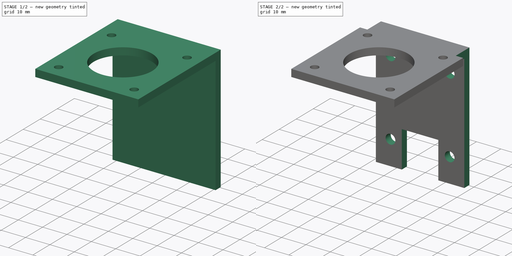
[diagram: build sequence overview — one tinted view per stage of 2, left to right]
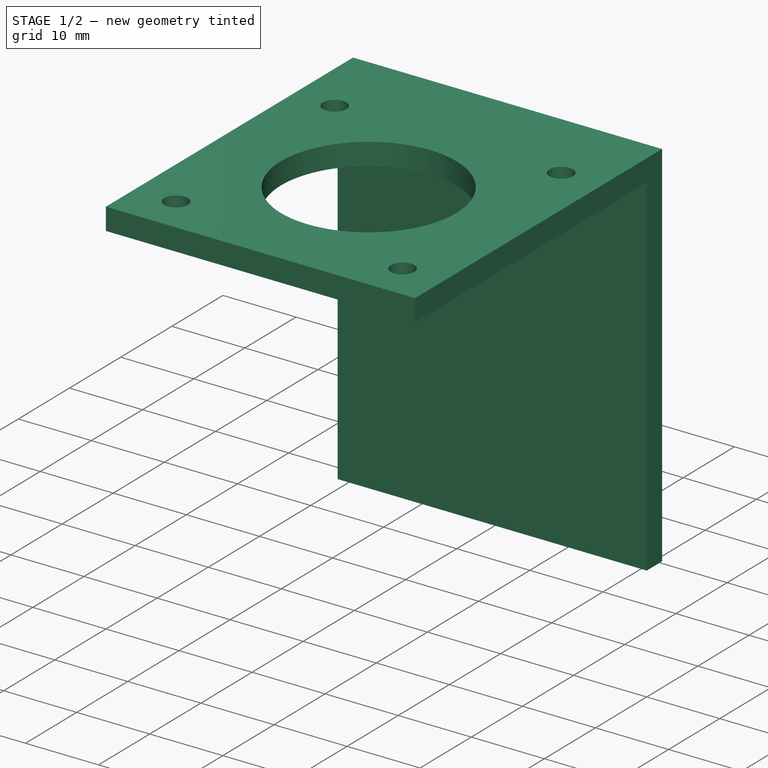
[diagram: stage 1 of 2 — iso view after this stage's code; geometry added in this stage tinted green]
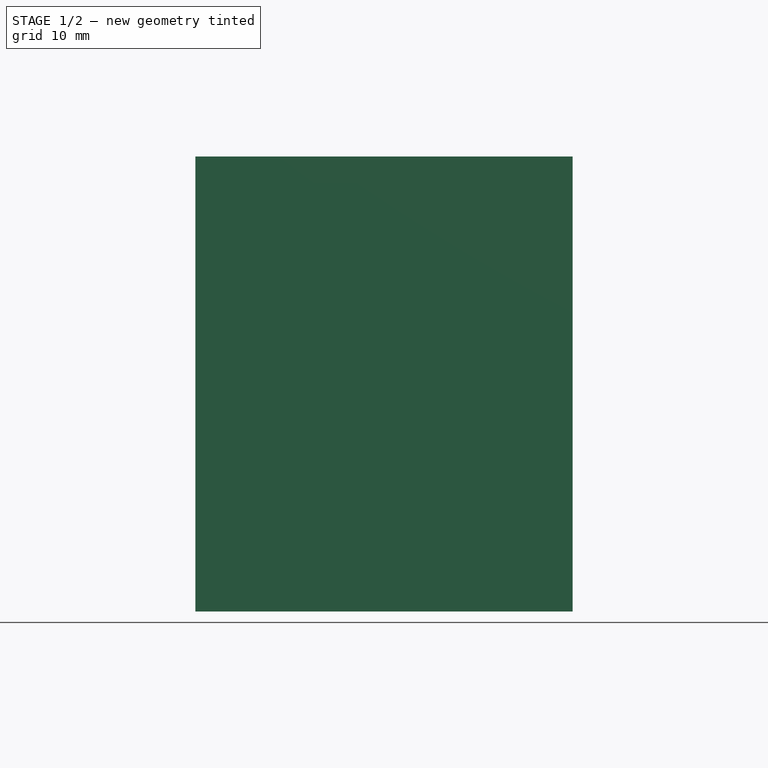
[diagram: stage 1 of 2 — front view after this stage's code; geometry added in this stage tinted green]
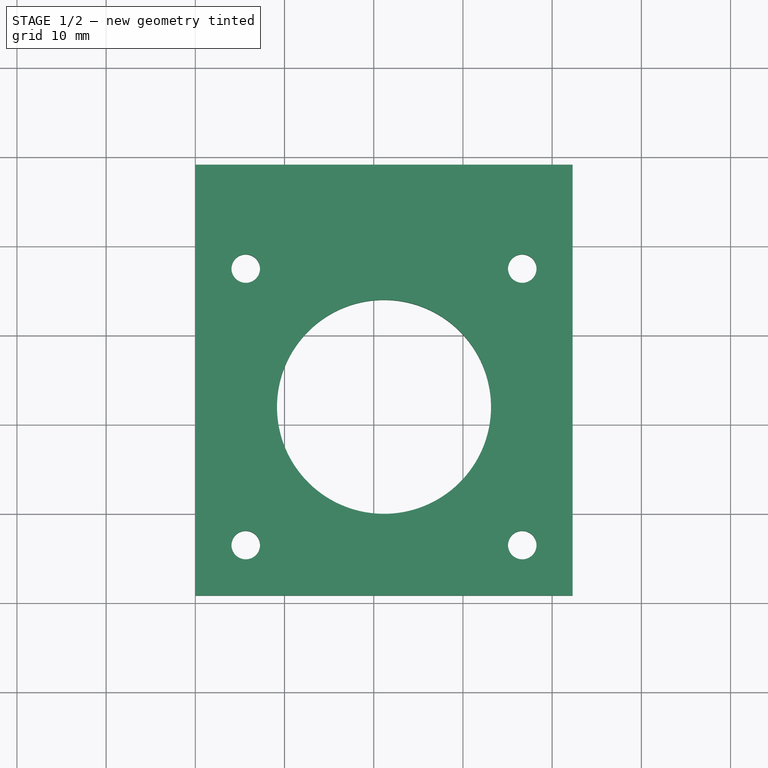
[diagram: stage 1 of 2 — top view after this stage's code; geometry added in this stage tinted green]
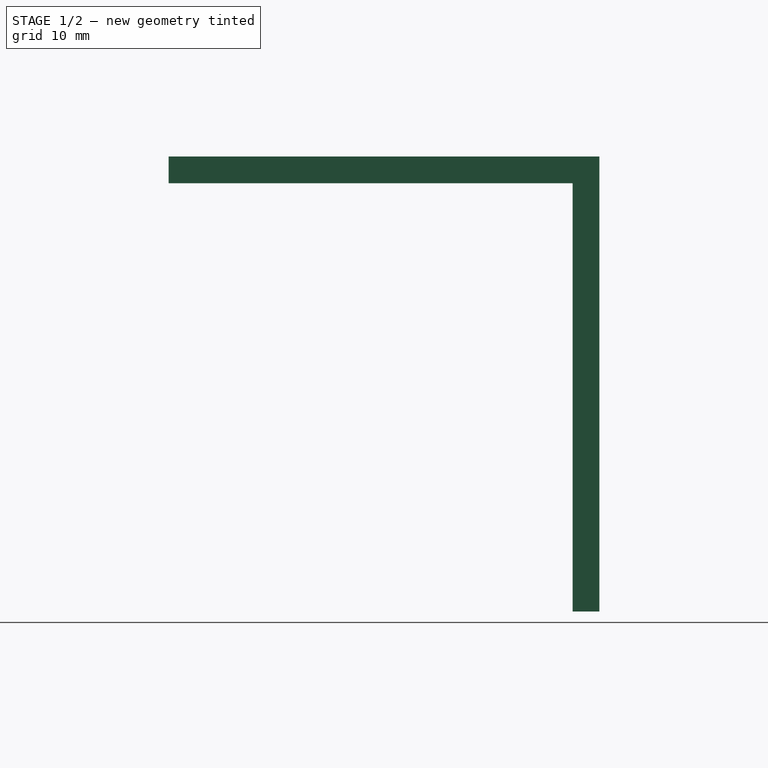
[diagram: stage 1 of 2 — right view after this stage's code; geometry added in this stage tinted green]
FCSTD DOCUMENT  (FreeCAD 0.16R6707 (Git))
Label: support_moteur
License: All rights reserved
LicenseURL: http://en.wikipedia.org/wiki/All_rights_reserved
objects: Drawing::FeatureViewPart×4, Sketcher::SketchObject×3, PartDesign::Pad×2, PartDesign::Pocket×1, Drawing::FeaturePage×1
note: 9 computed .brp shape members not serialized (recipe doc carries the construction recipe); baked Part::Feature solids carry a one-line shape summary decoded from their .brp

FEATURE [Sketcher::SketchObject] Sketch
  sketch-geometry (18):
    g0: LineSegment StartX=0 StartY=0 StartZ=0 EndX=42.3 EndY=0 EndZ=0
    g1: LineSegment StartX=42.3 StartY=0 StartZ=0 EndX=42.3 EndY=42.3 EndZ=0
    g2: LineSegment StartX=0 StartY=42.3 StartZ=0 EndX=0 EndY=0 EndZ=0
    g3: GeomPoint [constr] X=0 Y=48.3 Z=0
    g4: GeomPoint [constr] X=42.3 Y=48.3 Z=0
    g5: LineSegment StartX=0 StartY=42.3 StartZ=0 EndX=0 EndY=48.3 EndZ=0
    g6: LineSegment StartX=0 StartY=48.3 StartZ=0 EndX=42.3 EndY=48.3 EndZ=0
    g7: LineSegment StartX=42.3 StartY=48.3 StartZ=0 EndX=42.3 EndY=42.3 EndZ=0
    g8: GeomPoint [constr] X=5.65 Y=5.65 Z=0
    g9: GeomPoint [constr] X=5.65 Y=36.65 Z=0
    g10: GeomPoint [constr] X=36.65 Y=36.65 Z=0
    g11: GeomPoint [constr] X=36.65 Y=5.65 Z=0
    g12: Circle CenterX=5.65 CenterY=36.65 CenterZ=0 NormalX=0 NormalY=0 NormalZ=1 Radius=1.6
    g13: Circle CenterX=36.65 CenterY=36.65 CenterZ=0 NormalX=0 NormalY=0 NormalZ=1 Radius=1.6
    g14: Circle CenterX=5.65 CenterY=5.65 CenterZ=0 NormalX=0 NormalY=0 NormalZ=1 Radius=1.6
    g15: Circle CenterX=36.65 CenterY=5.65 CenterZ=0 NormalX=0 NormalY=0 NormalZ=1 Radius=1.6
    g16: GeomPoint [constr] X=21.15 Y=21.15 Z=0
    g17: Circle CenterX=21.15 CenterY=21.15 CenterZ=0 NormalX=0 NormalY=0 NormalZ=1 Radius=12
  constraints (39):
    c: Coincident(g0,g1)
    c: Coincident(g2,g0)
    c: Horizontal(g0)
    c: Vertical(g1)
    c: Vertical(g2)
    c: Coincident(g0,g-1)
    c: Distance(g2) = 42.3
    c: Distance(g0) = 42.3
    c: Distance(g1) = 42.3
    c: PointOnObject(g3,g-2)
    c: Distance(g3,g2) = 6
    c: DistanceX(g1,g4) = 0
    c: DistanceY(g1,g4) = 6
    c: Coincident(g2,g5)
    c: Coincident(g5,g3)
    c: Coincident(g5,g6)
    c: Coincident(g6,g4)
    c: Coincident(g6,g7)
    c: Coincident(g7,g1)
    c: DistanceX(g8,g9) = 0
    c: DistanceY(g10,g9) = 0
    c: DistanceY(g8,g11) = 0
    c: DistanceX(g8) = 5.65
    c: DistanceY(g8) = 5.65
    c: DistanceX(g10,g11) = 0
    c: DistanceY(g8,g9) = 31
    c: DistanceX(g9,g10) = 31
    c: Coincident(g12,g9)
    c: Coincident(g13,g10)
    c: Coincident(g14,g8)
    c: Coincident(g15,g11)
    c: Radius(g12) = 1.6
    c: Radius(g13) = 1.6
    c: Radius(g15) = 1.6
    c: Radius(g14) = 1.6
    c: DistanceY(g16) = 21.15
    c: DistanceX(g16) = 21.15
    c: Coincident(g17,g16)
    c: Radius(g17) = 12
FEATURE [PartDesign::Pad] Pad
  Length = 3
  Length2 = 100
  Sketch = -> Sketch
  Type = 0
FEATURE [Sketcher::SketchObject] Sketch001
  Placement = pos=(0,0,0) rot=(1,0,0;3.14159rad)
  Support = -> Pad [Face12]
  sketch-geometry (5):
    g0: GeomPoint [constr] X=0 Y=-45.3 Z=0
    g1: LineSegment StartX=0 StartY=-45.3 StartZ=0 EndX=42.3 EndY=-45.3 EndZ=0
    g2: LineSegment StartX=42.3 StartY=-45.3 StartZ=0 EndX=42.3 EndY=-48.3 EndZ=0
    g3: LineSegment StartX=42.3 StartY=-48.3 StartZ=0 EndX=0 EndY=-48.3 EndZ=0
    g4: LineSegment StartX=0 StartY=-48.3 StartZ=0 EndX=0 EndY=-45.3 EndZ=0
  constraints (13):
    c: PointOnObject(g0,g-2)
    c: DistanceY(g0) = -45.3
    c: Coincident(g1,g2)
    c: Coincident(g2,g3)
    c: Coincident(g3,g4)
    c: Coincident(g4,g1)
    c: Horizontal(g1)
    c: Horizontal(g3)
    c: Vertical(g2)
    c: Vertical(g4)
    c: Coincident(g1,g0)
    c: Distance(g1) = 42.3
    c: Distance(g2) = 3
FEATURE [PartDesign::Pad] Pad001
  Length = 48
  Length2 = 100
  Sketch = -> Sketch001
  Type = 0
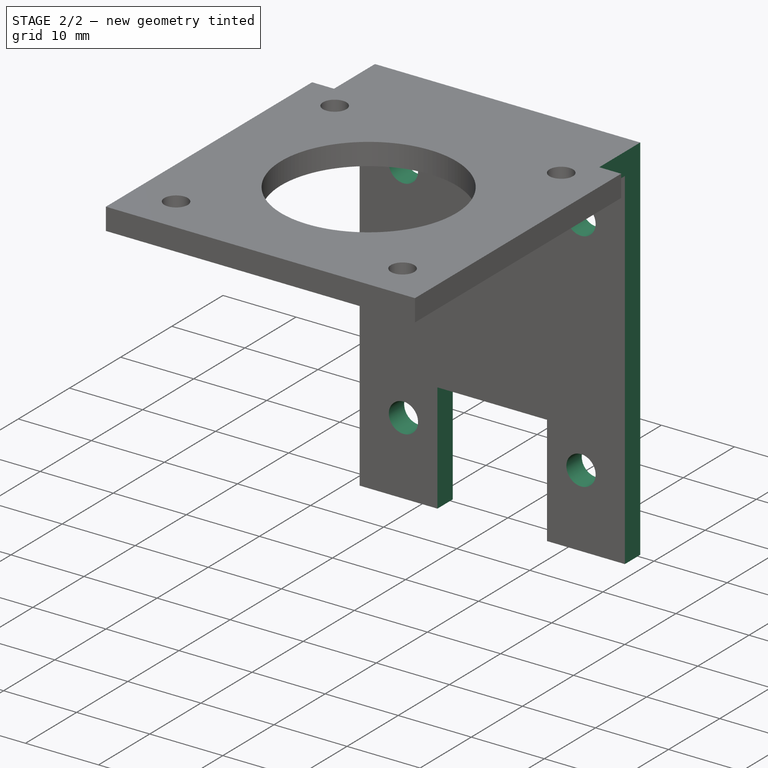
[diagram: stage 2 of 2 — iso view after this stage's code; geometry added in this stage tinted green]
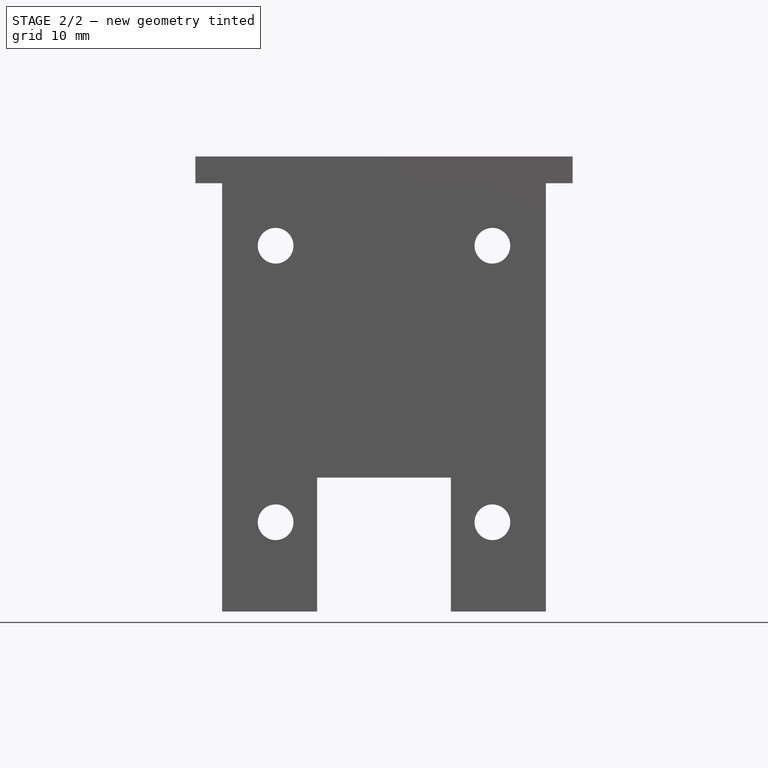
[diagram: stage 2 of 2 — front view after this stage's code; geometry added in this stage tinted green]
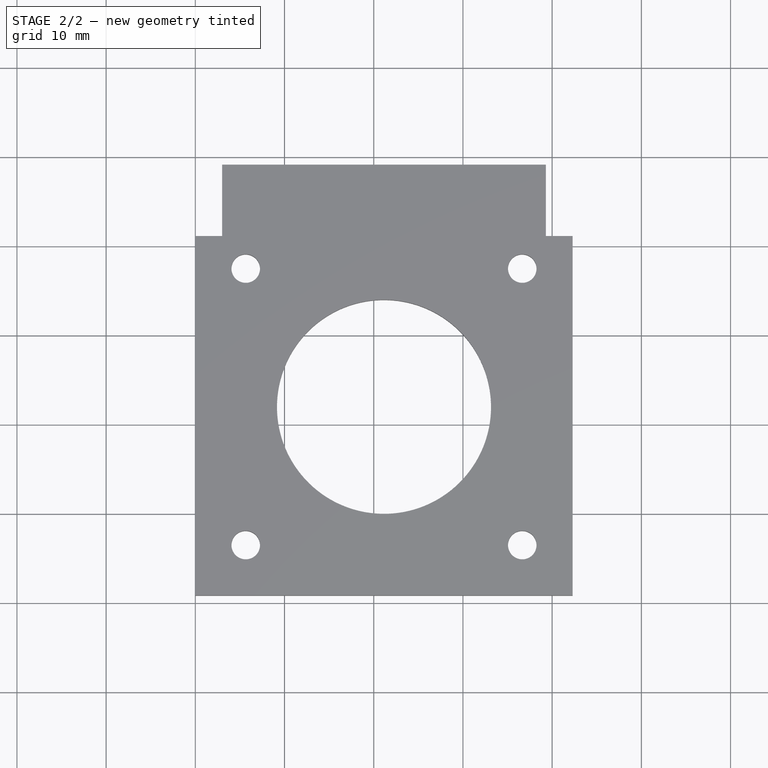
[diagram: stage 2 of 2 — top view after this stage's code; geometry added in this stage tinted green]
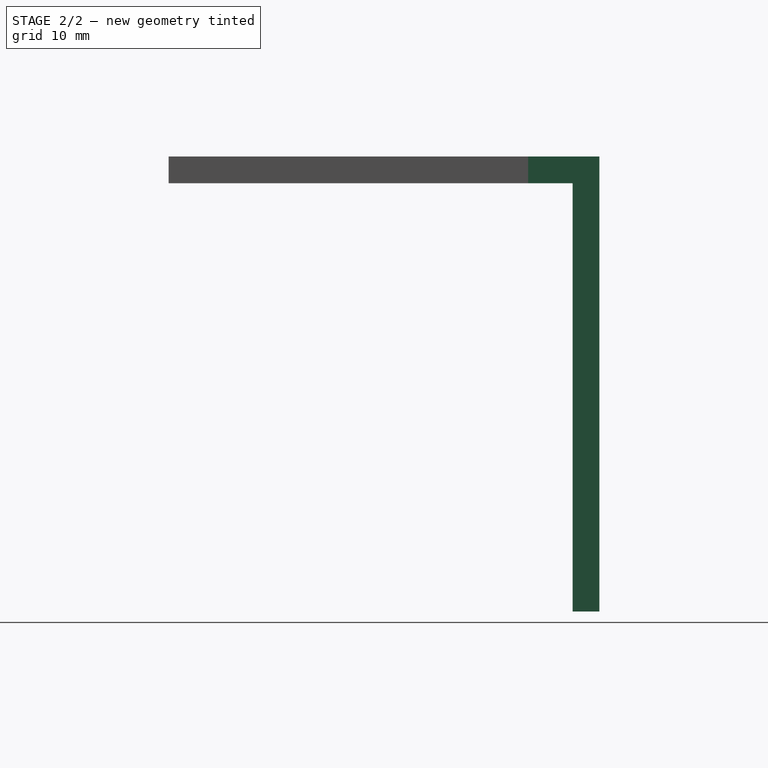
[diagram: stage 2 of 2 — right view after this stage's code; geometry added in this stage tinted green]
FEATURE [Sketcher::SketchObject] Sketch002
  Placement = pos=(0,48.3,0) rot=(0,0.707107,0.707107;3.14159rad)
  Support = -> Pad001 [Face18]
  sketch-geometry (22):
    g0: GeomPoint [constr] X=-9 Y=-7 Z=0
    g1: GeomPoint [constr] X=-33.3 Y=-7 Z=0
    g2: GeomPoint [constr] X=-33.3 Y=-38 Z=0
    g3: GeomPoint [constr] X=-9 Y=-38 Z=0
    g4: Circle CenterX=-33.3 CenterY=-7 CenterZ=0 NormalX=0 NormalY=0 NormalZ=1 Radius=2
    g5: Circle CenterX=-9 CenterY=-7 CenterZ=0 NormalX=0 NormalY=0 NormalZ=1 Radius=2
    g6: Circle CenterX=-33.3 CenterY=-38 CenterZ=0 NormalX=0 NormalY=0 NormalZ=1 Radius=2
    g7: Circle CenterX=-9 CenterY=-38 CenterZ=0 NormalX=0 NormalY=0 NormalZ=1 Radius=2
    g8: GeomPoint [constr] X=-21.15 Y=-48 Z=0
    g9: GeomPoint [constr] X=-28.65 Y=-48 Z=0
    g10: LineSegment StartX=-28.65 StartY=-48 StartZ=0 EndX=-13.65 EndY=-48 EndZ=0
    g11: LineSegment StartX=-13.65 StartY=-48 StartZ=0 EndX=-13.65 EndY=-33 EndZ=0
    g12: LineSegment StartX=-13.65 StartY=-33 StartZ=0 EndX=-28.65 EndY=-33 EndZ=0
    g13: LineSegment StartX=-28.65 StartY=-33 StartZ=0 EndX=-28.65 EndY=-48 EndZ=0
    g14: LineSegment StartX=0 StartY=-48 StartZ=0 EndX=-3 EndY=-48 EndZ=0
    g15: LineSegment StartX=-3 StartY=-48 StartZ=0 EndX=-3 EndY=3 EndZ=0
    g16: LineSegment StartX=-3 StartY=3 StartZ=0 EndX=0 EndY=3 EndZ=0
    g17: LineSegment StartX=0 StartY=3 StartZ=0 EndX=0 EndY=-48 EndZ=0
    g18: LineSegment StartX=-42.3 StartY=-48 StartZ=0 EndX=-39.3 EndY=-48 EndZ=0
    g19: LineSegment StartX=-39.3 StartY=-48 StartZ=0 EndX=-39.3 EndY=3 EndZ=0
    g20: LineSegment StartX=-39.3 StartY=3 StartZ=0 EndX=-42.3 EndY=3 EndZ=0
    g21: LineSegment StartX=-42.3 StartY=3 StartZ=0 EndX=-42.3 EndY=-48 EndZ=0
  constraints (55):
    c: DistanceY(g0) = -7
    c: DistanceY(g1) = -7
    c: DistanceX(g0) = -9
    c: DistanceX(g1,g0) = 24.3
    c: DistanceX(g1,g2) = 0
    c: DistanceY(g2,g1) = 31
    c: DistanceX(g3,g0) = 0
    c: DistanceY(g3,g0) = 31
    c: Coincident(g4,g1)
    c: Coincident(g5,g0)
    c: Coincident(g6,g2)
    c: Coincident(g7,g3)
    c: Radius(g5) = 2
    c: Radius(g4) = 2
    c: Radius(g6) = 2
    c: Radius(g7) = 2
    c: DistanceY(g8) = -48
    c: DistanceX(g8) = -21.15
    c: DistanceX(g9,g8) = 7.5
    c: DistanceY(g8,g9) = 0
    c: Coincident(g10,g11)
    c: Coincident(g11,g12)
    c: Coincident(g12,g13)
    c: Coincident(g13,g10)
    c: Horizontal(g10)
    c: Horizontal(g12)
    c: Vertical(g11)
    c: Vertical(g13)
    c: Coincident(g10,g9)
    c: Distance(g12) = 15
    c: Distance(g13) = 15
    c: Coincident(g14,g15)
    c: Coincident(g15,g16)
    c: Coincident(g16,g17)
    c: Coincident(g17,g14)
    c: Horizontal(g14)
    c: Horizontal(g16)
    c: Vertical(g15)
    c: Vertical(g17)
    c: PointOnObject(g14,g-2)
    c: Coincident(g18,g19)
    c: Coincident(g19,g20)
    c: Coincident(g20,g21)
    c: Coincident(g21,g18)
    c: Horizontal(g18)
    c: Horizontal(g20)
    c: Vertical(g19)
    c: Vertical(g21)
    c: DistanceX(g18) = -42.3
    c: DistanceY(g18) = -48
    c: DistanceY(g19) = 3
    c: DistanceY(g15,g19) = 0
    c: DistanceY(g14,g18) = 0
    c: Distance(g18) = 3
    c: Distance(g14) = 3
FEATURE [PartDesign::Pocket] Pocket
  Length = 8
  Sketch = -> Sketch002
  Type = 0
FEATURE [Drawing::FeatureViewPart] Ortho  label="Ortho_0_0"
  Direction = (1,0,0)
  HiddenWidth = 0.15
  LineWidth = 0.35
  Rotation = -90
  Scale = 1.5
  ShowHiddenLines = false
  ShowSmoothLines = false
  Source = -> Pocket
  Tolerance = 0.05
  ViewResult = <g id="Ortho_0_0"\n   transform="rotate(-90,73.775,146.25) translate(73.775,146.25) scale(1.5,1.5)"\n  >\n<g   stroke="rgb(0, 0, 0)"\n   stroke-width="0.233333"\n   stroke-linecap="butt"\n   stroke-linejoin="miter"\n   fill="none"\n   transform="scale(1,-1)"\n  >\n<path id= "1" d=" M 0 0 L 3 0 " />\n<path id= "2" d=" M 0 0 L 0 -40.3 " />\n<path id= "3" d=" M 3 -40.3 L 0 -40.3 " />\n<path id= "4" d=" M 3 0 L 3 -40.3 " />\n<path id= "5" d=" M 0 -40.3 L 0 -45.3 " />\n<path id= "6" d=" M 3 -48.3 L 3 -40.3 " />\n<path id= "7" d=" M 0 -40.3 L 3 -40.3 " />\n<path id= "8" d=" M -48 -48.3 L 0 -48.3 " />\n<path id= "9" d=" M 0 -48.3 L 3 -48.3 " />\n<path id= "10" d=" M 0 -45.3 L -48 -45.3 " />\n<path id= "11" d=" M -48 -48.3 L -48 -45.3 " />\n<path id= "12" d=" M -48 -48.3 L -48 -45.3 " />\n</g>\n</g>
  Visible = true
  X = 73.775
  Y = 146.25
FEATURE [Drawing::FeatureViewPart] Ortho001  label="Ortho_0_1"
  Direction = (0,0,1)
  HiddenWidth = 0.15
  LineWidth = 0.35
  Rotation = 90
  Scale = 1.5
  ShowHiddenLines = false
  ShowSmoothLines = false
  Source = -> Pocket
  Tolerance = 0.05
  ViewResult = <g id="Ortho_0_1"\n   transform="rotate(90,73.775,48.275) translate(73.775,48.275) scale(1.5,1.5)"\n  >\n<g   stroke="rgb(0, 0, 0)"\n   stroke-width="0.233333"\n   stroke-linecap="butt"\n   stroke-linejoin="miter"\n   fill="none"\n   transform="scale(1,-1)"\n  >\n<path id= "1" d=" M 0 0 L 42.3 0 " />\n<path id= "2" d=" M 0 40.3 L 0 0 " />\n<path id= "3" d=" M 42.3 0 L 42.3 40.3 " />\n<path id= "4" d=" M 39.3 40.3 L 42.3 40.3 " />\n<path id= "5" d=" M 39.3 48.3 L 39.3 40.3 " />\n<path id= "6" d=" M 3 48.3 L 39.3 48.3 " />\n<path id= "7" d=" M 3 48.3 L 3 40.3 " />\n<path id= "8" d=" M 3 40.3 L 0 40.3 " />\n<circle cx ="5.65" cy ="36.65" r ="1.6" /><circle cx ="21.15" cy ="21.15" r ="12" /><circle cx ="5.65" cy ="5.65" r ="1.6" /><circle cx ="36.65" cy ="5.65" r ="1.6" /><circle cx ="36.65" cy ="36.65" r ="1.6" /></g>\n</g>
  Visible = true
  X = 73.775
  Y = 48.275
FEATURE [Drawing::FeatureViewPart] Ortho002  label="Ortho_1_1"
  Direction = (0.57735,0.57735,0.57735)
  HiddenWidth = 0.15
  LineWidth = 0.35
  Rotation = 120
  Scale = 1.5
  ShowHiddenLines = false
  ShowSmoothLines = false
  Source = -> Pocket
  Tolerance = 0.05
  ViewResult = <blob: 3896 chars omitted>
  Visible = true
  X = 262.801
  Y = 24.7028
FEATURE [Drawing::FeatureViewPart] Ortho003  label="Ortho_1_0"
  Direction = (0,1,0)
  HiddenWidth = 0.15
  LineWidth = 0.35
  Rotation = -90
  Scale = 1.5
  ShowHiddenLines = false
  ShowSmoothLines = false
  Source = -> Pocket
  Tolerance = 0.05
  ViewResult = <g id="Ortho_1_0"\n   transform="rotate(-90,297.708,146.25) translate(297.708,146.25) scale(1.5,1.5)"\n  >\n<g   stroke="rgb(0, 0, 0)"\n   stroke-width="0.233333"\n   stroke-linecap="butt"\n   stroke-linejoin="miter"\n   fill="none"\n   transform="scale(1,-1)"\n  >\n<path id= "1" d=" M 3 0 L 0 0 " />\n<path id= "2" d=" M 3 42.3 L 0 42.3 " />\n<path id= "3" d=" M 0 42.3 L 0 39.3 " />\n<path id= "4" d=" M 0 0 L 0 3 " />\n<path id= "5" d=" M 3 39.3 L 3 42.3 " />\n<path id= "6" d=" M 3 3 L 3 39.3 " />\n<path id= "7" d=" M 3 3 L 3 0 " />\n<path id= "8" d=" M 0 39.3 L 3 39.3 " />\n<path id= "9" d=" M -48 39.3 L 0 39.3 " />\n<path id= "10" d=" M 0 39.3 L 3 39.3 " />\n<path id= "11" d=" M -48 3 L 0 3 " />\n<path id= "12" d=" M 0 3 L 3 3 " />\n<path id= "13" d=" M 0 39.3 L 0 3 " />\n<path id= "14" d=" M -48 13.65 L -48 3 " />\n<path id= "15" d=" M -48 13.65 L -33 13.65 " />\n<path id= "16" d=" M -33 13.65 L -33 28.65 " />\n<path id= "17" d=" M -33 28.65 L -48 28.65 " />\n<path id= "18" d=" M -48 39.3 L -48 28.65 " />\n<circle cx ="-7" cy ="33.3" r ="2" /><circle cx ="-7" cy ="9" r ="2" /><circle cx ="-38" cy ="9" r ="2" /><circle cx ="-38" cy ="33.3" r ="2" /></g>\n</g>
  Visible = true
  X = 297.708
  Y = 146.25
FEATURE [Drawing::FeaturePage] Page
  EditableTexts = AUTHOR NAME | CREATION DATE | SUPERVISOR NAME | CHECK DATE | SCALE | WEIGHT | NUMBER | SHEET | TITLE | SUBTITLE
  Group = -> [Ortho,Ortho001,Ortho002,Ortho003]
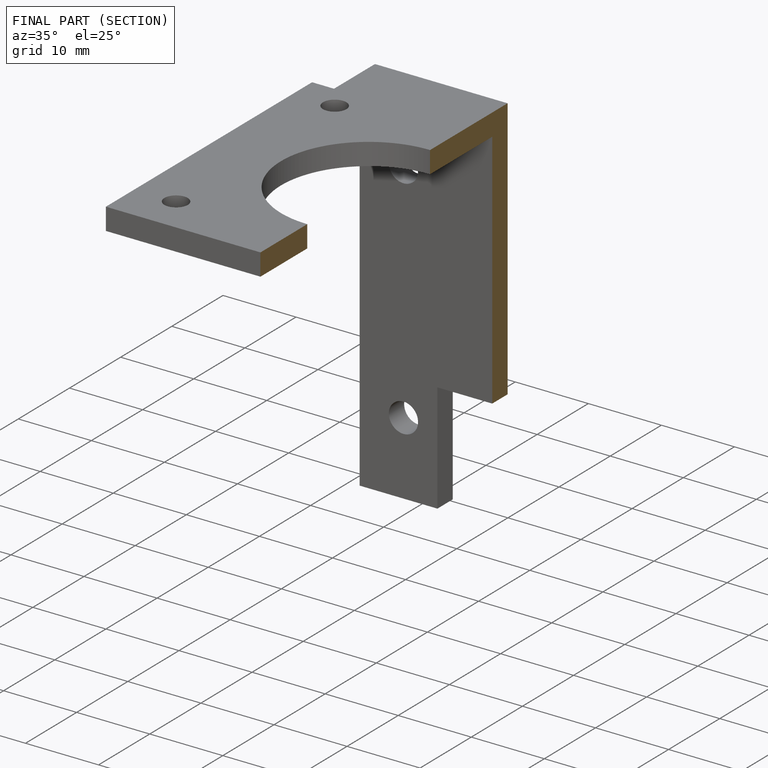
[diagram: finished part — half-section view (interior)]
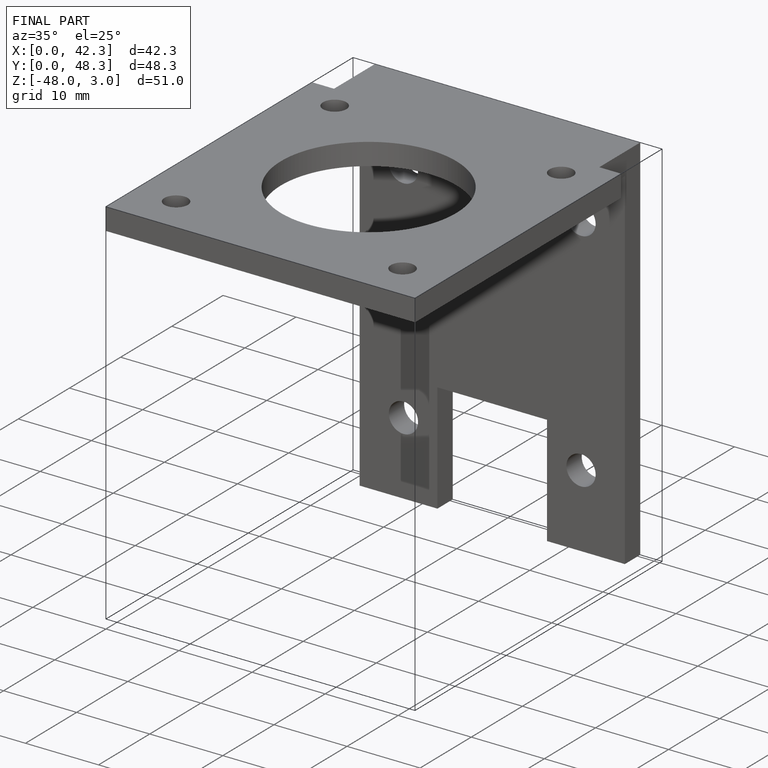
[diagram: finished part — iso view with bounding-box wireframe]
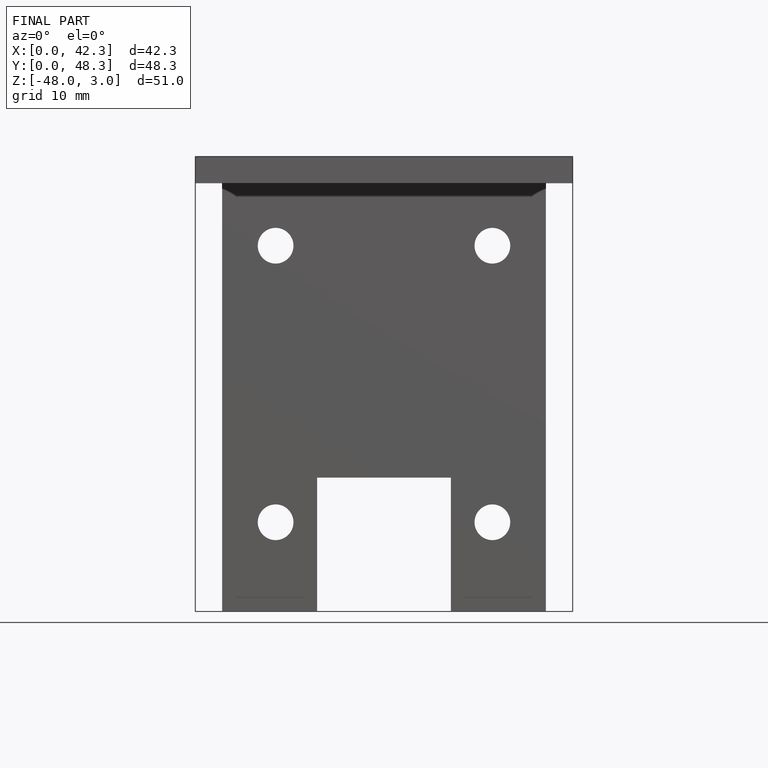
[diagram: finished part — front view with bounding-box wireframe]
